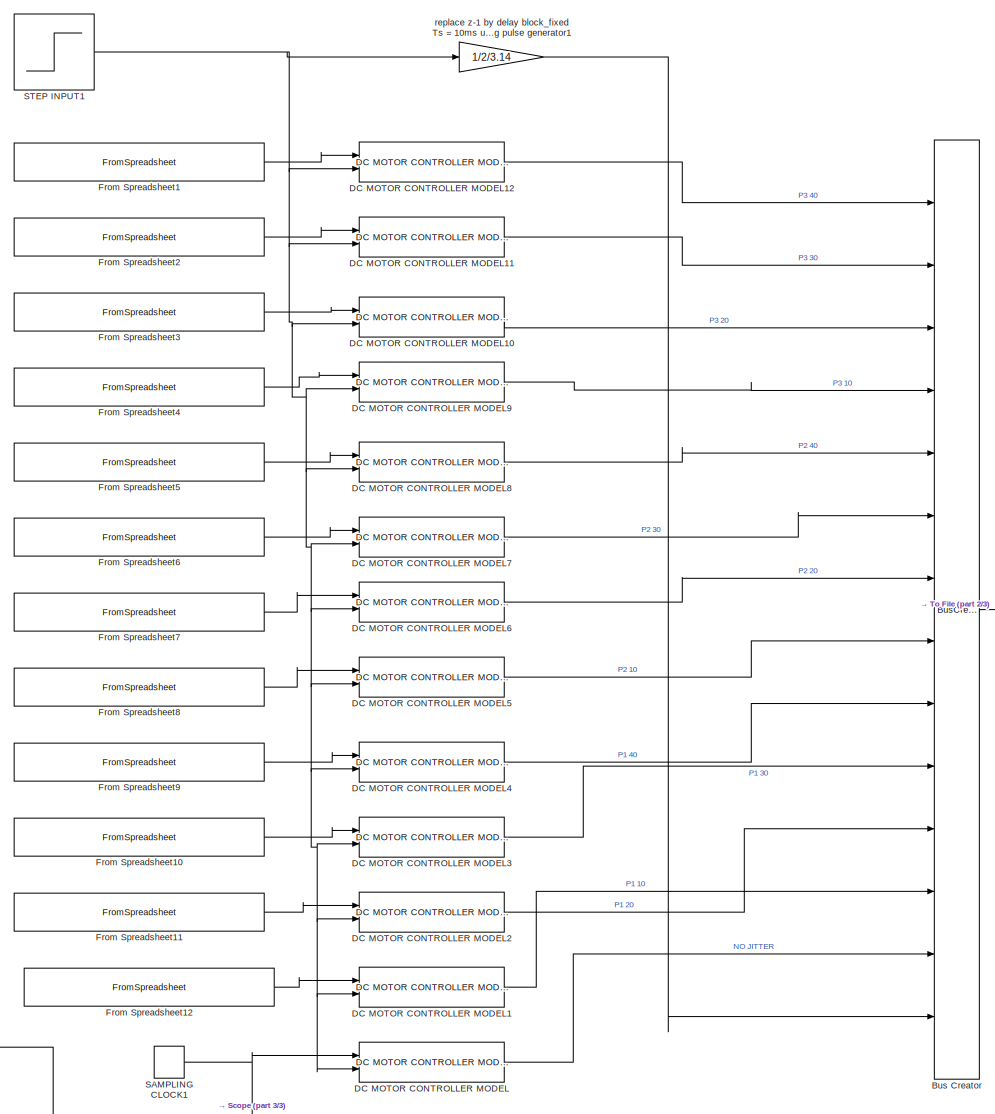
[diagram: root canvas - part 1/3, center side, full height]
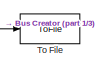
[diagram: root canvas - part 2/3, middle right region]
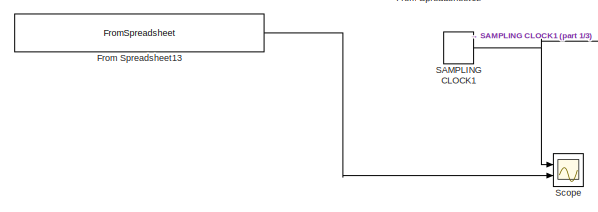
[diagram: root canvas - part 3/3, bottom left region]
MODEL slx_725d60f8f585
KIND model
CONFIG AbsTol = auto
CONFIG FixedStep = auto
CONFIG MaxStep = auto
CONFIG MinStep = auto
CONFIG RelTol = 1e-3
CONFIG SampleTimeConstraint = Unconstrained
CONFIG Solver = VariableStepAuto
CONFIG SolverMode = Auto
CONFIG SolverName = VariableStepAuto
CONFIG StartTime = 0.0
CONFIG StopTime = 0.5
BLOCK [BusCreator] Bus Creator
  DisplayOption = bar
  InheritFromInputs = on
  Inputs = 14
  Ports = [14, 1]
BLOCK [Reference] DC MOTOR CONTROLLER MODEL  REF=PIcontroller/DC MOTOR CONTROLLER MODEL
  Ports = [2, 1]
  SourceBlock = PIcontroller/DC MOTOR CONTROLLER MODEL
  SourceType = SubSystem
BLOCK [Reference] DC MOTOR CONTROLLER MODEL1  REF=PIcontroller/DC MOTOR CONTROLLER MODEL
  Ports = [2, 1]
  SourceBlock = PIcontroller/DC MOTOR CONTROLLER MODEL
  SourceType = SubSystem
BLOCK [Reference] DC MOTOR CONTROLLER MODEL10  REF=PIcontroller/DC MOTOR CONTROLLER MODEL
  Ports = [2, 1]
  SourceBlock = PIcontroller/DC MOTOR CONTROLLER MODEL
  SourceType = SubSystem
BLOCK [Reference] DC MOTOR CONTROLLER MODEL11  REF=PIcontroller/DC MOTOR CONTROLLER MODEL
  Ports = [2, 1]
  SourceBlock = PIcontroller/DC MOTOR CONTROLLER MODEL
  SourceType = SubSystem
BLOCK [Reference] DC MOTOR CONTROLLER MODEL12  REF=PIcontroller/DC MOTOR CONTROLLER MODEL
  Ports = [2, 1]
  SourceBlock = PIcontroller/DC MOTOR CONTROLLER MODEL
  SourceType = SubSystem
BLOCK [Reference] DC MOTOR CONTROLLER MODEL2  REF=PIcontroller/DC MOTOR CONTROLLER MODEL
  Ports = [2, 1]
  SourceBlock = PIcontroller/DC MOTOR CONTROLLER MODEL
  SourceType = SubSystem
BLOCK [Reference] DC MOTOR CONTROLLER MODEL3  REF=PIcontroller/DC MOTOR CONTROLLER MODEL
  Ports = [2, 1]
  SourceBlock = PIcontroller/DC MOTOR CONTROLLER MODEL
  SourceType = SubSystem
BLOCK [Reference] DC MOTOR CONTROLLER MODEL4  REF=PIcontroller/DC MOTOR CONTROLLER MODEL
  Ports = [2, 1]
  SourceBlock = PIcontroller/DC MOTOR CONTROLLER MODEL
  SourceType = SubSystem
BLOCK [Reference] DC MOTOR CONTROLLER MODEL5  REF=PIcontroller/DC MOTOR CONTROLLER MODEL
  Ports = [2, 1]
  SourceBlock = PIcontroller/DC MOTOR CONTROLLER MODEL
  SourceType = SubSystem
BLOCK [Reference] DC MOTOR CONTROLLER MODEL6  REF=PIcontroller/DC MOTOR CONTROLLER MODEL
  Ports = [2, 1]
  SourceBlock = PIcontroller/DC MOTOR CONTROLLER MODEL
  SourceType = SubSystem
BLOCK [Reference] DC MOTOR CONTROLLER MODEL7  REF=PIcontroller/DC MOTOR CONTROLLER MODEL
  Ports = [2, 1]
  SourceBlock = PIcontroller/DC MOTOR CONTROLLER MODEL
  SourceType = SubSystem
BLOCK [Reference] DC MOTOR CONTROLLER MODEL8  REF=PIcontroller/DC MOTOR CONTROLLER MODEL
  Ports = [2, 1]
  SourceBlock = PIcontroller/DC MOTOR CONTROLLER MODEL
  SourceType = SubSystem
BLOCK [Reference] DC MOTOR CONTROLLER MODEL9  REF=PIcontroller/DC MOTOR CONTROLLER MODEL
  Ports = [2, 1]
  SourceBlock = PIcontroller/DC MOTOR CONTROLLER MODEL
  SourceType = SubSystem
BLOCK [FromSpreadsheet] From Spreadsheet1
  ExtrapolationBeforeFirstDataPoint = Ground value
  FileName = pattern.xlsx
  InterpolationWithinTimeRange = Zero order hold
  OutDataTypeStr = double
  Ports = [0, 1]
  SampleTime = 0.0001
  SheetName = P3_40
BLOCK [FromSpreadsheet] From Spreadsheet10
  ExtrapolationBeforeFirstDataPoint = Ground value
  FileName = pattern.xlsx
  InterpolationWithinTimeRange = Zero order hold
  OutDataTypeStr = double
  Ports = [0, 1]
  SampleTime = 0.0001
  SheetName = P1_30
BLOCK [FromSpreadsheet] From Spreadsheet11
  ExtrapolationBeforeFirstDataPoint = Ground value
  FileName = pattern.xlsx
  InterpolationWithinTimeRange = Zero order hold
  OutDataTypeStr = double
  Ports = [0, 1]
  SampleTime = 0.0001
  SheetName = P1_20
BLOCK [FromSpreadsheet] From Spreadsheet12
  ExtrapolationBeforeFirstDataPoint = Ground value
  FileName = pattern.xlsx
  InterpolationWithinTimeRange = Zero order hold
  OutDataTypeStr = double
  Ports = [0, 1]
  SampleTime = 0.0001
  SheetName = P1_10
BLOCK [FromSpreadsheet] From Spreadsheet13
  ExtrapolationBeforeFirstDataPoint = Ground value
  FileName = pattern.xlsx
  InterpolationWithinTimeRange = Zero order hold
  OutDataTypeStr = double
  Ports = [0, 1]
  SampleTime = 0.0001
  SheetName = No_jitter
BLOCK [FromSpreadsheet] From Spreadsheet2
  ExtrapolationBeforeFirstDataPoint = Ground value
  FileName = pattern.xlsx
  InterpolationWithinTimeRange = Zero order hold
  OutDataTypeStr = double
  Ports = [0, 1]
  SampleTime = 0.0001
  SheetName = P3_30
BLOCK [FromSpreadsheet] From Spreadsheet3
  ExtrapolationBeforeFirstDataPoint = Ground value
  FileName = pattern.xlsx
  InterpolationWithinTimeRange = Zero order hold
  OutDataTypeStr = double
  Ports = [0, 1]
  SampleTime = 0.0001
  SheetName = P3_20
BLOCK [FromSpreadsheet] From Spreadsheet4
  ExtrapolationBeforeFirstDataPoint = Ground value
  FileName = pattern.xlsx
  InterpolationWithinTimeRange = Zero order hold
  OutDataTypeStr = double
  Ports = [0, 1]
  SampleTime = 0.0001
  SheetName = P3_10
BLOCK [FromSpreadsheet] From Spreadsheet5
  ExtrapolationBeforeFirstDataPoint = Ground value
  FileName = pattern.xlsx
  InterpolationWithinTimeRange = Zero order hold
  OutDataTypeStr = double
  Ports = [0, 1]
  SampleTime = 0.0001
  SheetName = P2_40
BLOCK [FromSpreadsheet] From Spreadsheet6
  ExtrapolationBeforeFirstDataPoint = Ground value
  FileName = pattern.xlsx
  InterpolationWithinTimeRange = Zero order hold
  OutDataTypeStr = double
  Ports = [0, 1]
  SampleTime = 0.0001
  SheetName = P2_30
BLOCK [FromSpreadsheet] From Spreadsheet7
  ExtrapolationBeforeFirstDataPoint = Ground value
  FileName = pattern.xlsx
  InterpolationWithinTimeRange = Zero order hold
  OutDataTypeStr = double
  Ports = [0, 1]
  SampleTime = 0.0001
  SheetName = P2_20
BLOCK [FromSpreadsheet] From Spreadsheet8
  ExtrapolationBeforeFirstDataPoint = Ground value
  FileName = pattern.xlsx
  InterpolationWithinTimeRange = Zero order hold
  OutDataTypeStr = double
  Ports = [0, 1]
  SampleTime = 0.0001
  SheetName = P2_10
BLOCK [FromSpreadsheet] From Spreadsheet9
  ExtrapolationBeforeFirstDataPoint = Ground value
  FileName = pattern.xlsx
  InterpolationWithinTimeRange = Zero order hold
  OutDataTypeStr = double
  Ports = [0, 1]
  SampleTime = 0.0001
  SheetName = P1_40
BLOCK [DiscretePulseGenerator] SAMPLING CLOCK1
  Period = 0.01
  Ports = [0, 1]
  PulseType = Time based
  PulseWidth = 50
BLOCK [Step] STEP INPUT1
  After = pre_speed*2*3.14
  Before = 11*2*3.14
  SampleTime = 0
  Time = 0.2
BLOCK [Scope] Scope
  NumInputPorts = 2
  Ports = [2]
  ScopeSpecificationString = Simulink.scopes.TimeScopeBlockCfg('CurrentConfiguration', extmgr.ConfigurationSet(extmgr.Configuration('Core','General UI',true),extmgr.Configuration('Core','Source UI',true),extmgr.Configuration('Sources','WiredSimulink',true),extmgr.Configuration('Visuals','Time Domain',true,'SerializedDisplays',{struct('MinYLimReal','-0.125','MaxYLimReal','1.125','YLabelReal','','MinYLimMag','0.00000','MaxYLimM...<+1372ch>
BLOCK [ToFile] To File
  Filename = test.mat
  Ports = [1]
BLOCK [Gain] replace z-1 by delay block_fixed Ts = 10ms using pulse generator1
  Gain = 1/2/3.14
  OutDataTypeStr = Inherit: Inherit via internal rule
  ParamDataTypeStr = Inherit: Inherit via internal rule
  SaturateOnIntegerOverflow = off
LINE Bus Creator:1 -> To File:1
LINE DC MOTOR CONTROLLER MODEL10:1 -> Bus Creator:3
LINE DC MOTOR CONTROLLER MODEL11:1 -> Bus Creator:2
LINE DC MOTOR CONTROLLER MODEL12:1 -> Bus Creator:1
LINE DC MOTOR CONTROLLER MODEL1:1 -> Bus Creator:12
LINE DC MOTOR CONTROLLER MODEL2:1 -> Bus Creator:11
LINE DC MOTOR CONTROLLER MODEL3:1 -> Bus Creator:10
LINE DC MOTOR CONTROLLER MODEL4:1 -> Bus Creator:9
LINE DC MOTOR CONTROLLER MODEL5:1 -> Bus Creator:8
LINE DC MOTOR CONTROLLER MODEL6:1 -> Bus Creator:7
LINE DC MOTOR CONTROLLER MODEL7:1 -> Bus Creator:6
LINE DC MOTOR CONTROLLER MODEL8:1 -> Bus Creator:5
LINE DC MOTOR CONTROLLER MODEL9:1 -> Bus Creator:4
LINE DC MOTOR CONTROLLER MODEL:1 -> Bus Creator:13
LINE From Spreadsheet10:1 -> DC MOTOR CONTROLLER MODEL3:1
LINE From Spreadsheet11:1 -> DC MOTOR CONTROLLER MODEL2:1
LINE From Spreadsheet12:1 -> DC MOTOR CONTROLLER MODEL1:1
LINE From Spreadsheet13:1 -> Scope:2
LINE From Spreadsheet1:1 -> DC MOTOR CONTROLLER MODEL12:1
LINE From Spreadsheet2:1 -> DC MOTOR CONTROLLER MODEL11:1
LINE From Spreadsheet3:1 -> DC MOTOR CONTROLLER MODEL10:1
LINE From Spreadsheet4:1 -> DC MOTOR CONTROLLER MODEL9:1
LINE From Spreadsheet5:1 -> DC MOTOR CONTROLLER MODEL8:1
LINE From Spreadsheet6:1 -> DC MOTOR CONTROLLER MODEL7:1
LINE From Spreadsheet7:1 -> DC MOTOR CONTROLLER MODEL6:1
LINE From Spreadsheet8:1 -> DC MOTOR CONTROLLER MODEL5:1
LINE From Spreadsheet9:1 -> DC MOTOR CONTROLLER MODEL4:1
NET SAMPLING CLOCK1:1 -> DC MOTOR CONTROLLER MODEL:1, Scope:1
NET STEP INPUT1:1 -> DC MOTOR CONTROLLER MODEL10:2, DC MOTOR CONTROLLER MODEL11:2, DC MOTOR CONTROLLER MODEL12:2, DC MOTOR CONTROLLER MODEL1:2, DC MOTOR CONTROLLER MODEL2:2, DC MOTOR CONTROLLER MODEL3:2, DC MOTOR CONTROLLER MODEL4:2, DC MOTOR CONTROLLER MODEL5:2, DC MOTOR CONTROLLER MODEL6:2, DC MOTOR CONTROLLER MODEL7:2, DC MOTOR CONTROLLER MODEL8:2, DC MOTOR CONTROLLER MODEL9:2, DC MOTOR CONTROLLER MODEL:2, replace z-1 by delay block_fixed Ts = 10ms using pulse generator1:1
LINE replace z-1 by delay block_fixed Ts = 10ms using pulse generator1:1 -> Bus Creator:14
note: NET lines group one-source signal fan-out (src -> all destinations, sorted); 1:1 wires keep LINE
